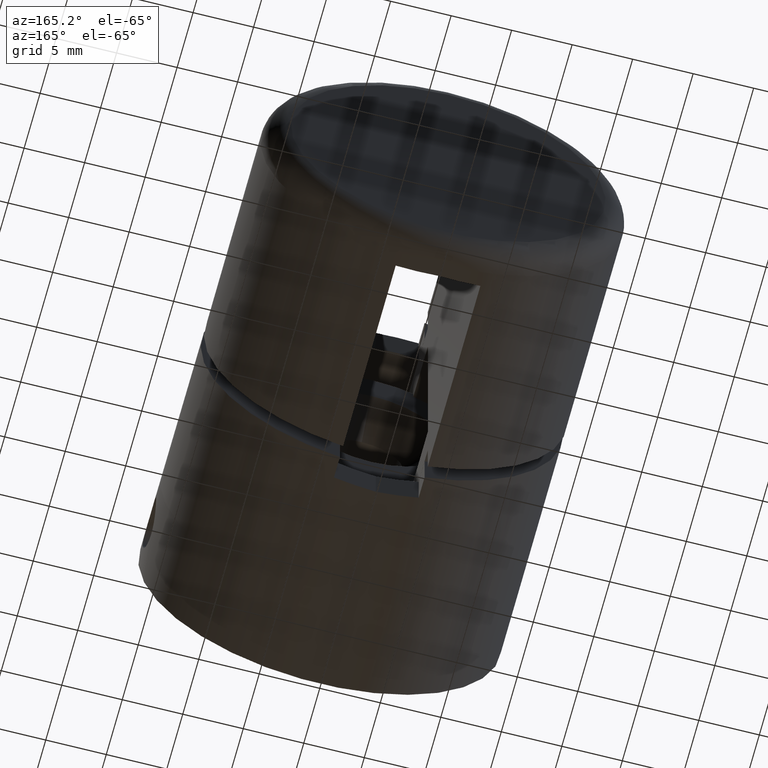
[diagram: clean part render]
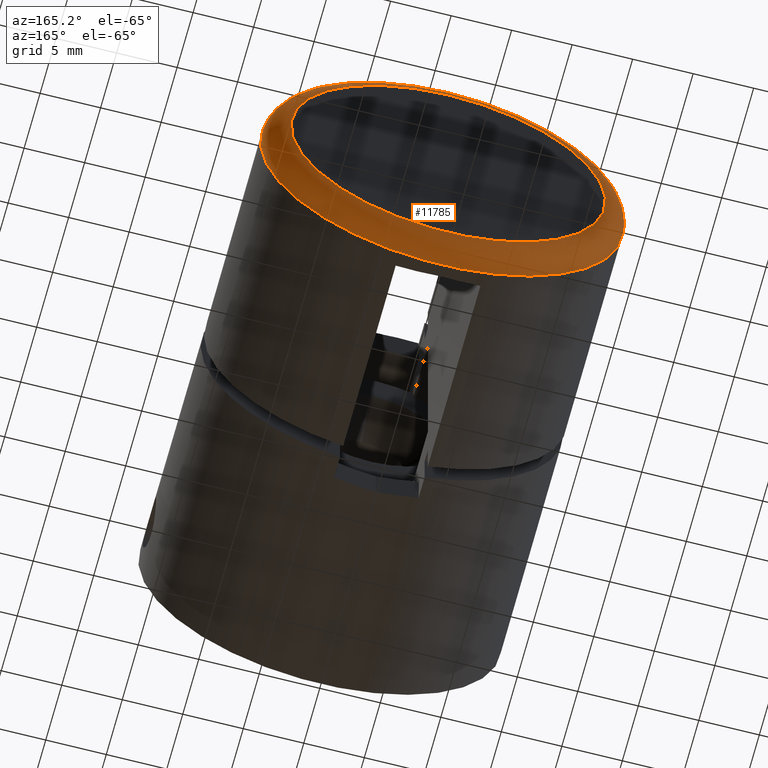
[diagram: same view with one face highlighted and labeled with its STEP entity id]
A machine part, auxiliary view. The second image highlights one B-rep face of the part: STEP entity #11785.
In plain terms, the highlighted toroidal blend (fillet) surface has major radius 13 mm and minor (blend) radius 2 mm.
Its self-contained STEP definition (entity closure, byte-faithful):
#1523 = DIRECTION ( 'NONE',  ( 0.0000000000000000000, 0.0000000000000000000, -1.000000000000000000 ) ) ;
#1818 = AXIS2_PLACEMENT_3D ( 'NONE', #8651, #3491, #4745 ) ;
#3225 = CIRCLE ( 'NONE', #10066, 15.00000000000000000 ) ;
#3491 = DIRECTION ( 'NONE',  ( 0.0000000000000000000, -1.000000000000000000, 0.0000000000000000000 ) ) ;
#3755 = FACE_OUTER_BOUND ( 'NONE', #8431, .T. ) ;
#4147 = DIRECTION ( 'NONE',  ( 0.0000000000000000000, 0.0000000000000000000, -1.000000000000000000 ) ) ;
#4745 = DIRECTION ( 'NONE',  ( 0.0000000000000000000, 0.0000000000000000000, -1.000000000000000000 ) ) ;
#4756 = AXIS2_PLACEMENT_3D ( 'NONE', #5287, #7888, #1523 ) ;
#5287 = CARTESIAN_POINT ( 'NONE',  ( 0.0000000000000000000, 1.500000000000000000, 0.0000000000000000000 ) ) ;
#5296 = VERTEX_POINT ( 'NONE', #6538 ) ;
#6040 = ORIENTED_EDGE ( 'NONE', *, *, #9350, .F. ) ;
#6368 = EDGE_CURVE ( 'NONE', #13329, #13329, #13049, .T. ) ;
#6538 = CARTESIAN_POINT ( 'NONE',  ( 0.0000000000000000000, 3.499999999999999600, -15.00000000000000000 ) ) ;
#7888 = DIRECTION ( 'NONE',  ( 0.0000000000000000000, -1.000000000000000000, 0.0000000000000000000 ) ) ;
#8134 = CARTESIAN_POINT ( 'NONE',  ( 0.0000000000000000000, 3.499999999999999600, 0.0000000000000000000 ) ) ;
#8431 = EDGE_LOOP ( 'NONE', ( #13105 ) ) ;
#8651 = CARTESIAN_POINT ( 'NONE',  ( 0.0000000000000000000, 3.499999999999999600, 0.0000000000000000000 ) ) ;
#9350 = EDGE_CURVE ( 'NONE', #5296, #5296, #3225, .T. ) ;
#10066 = AXIS2_PLACEMENT_3D ( 'NONE', #8134, #10526, #4147 ) ;
#10526 = DIRECTION ( 'NONE',  ( -0.0000000000000000000, 1.000000000000000000, -0.0000000000000000000 ) ) ;
#11785 = ADVANCED_FACE ( 'NONE', ( #15686, #3755 ), #15482, .T. ) ;
#13049 = CIRCLE ( 'NONE', #4756, 13.00000000000000000 ) ;
#13084 = CARTESIAN_POINT ( 'NONE',  ( 0.0000000000000000000, 1.500000000000000000, -13.00000000000000000 ) ) ;
#13105 = ORIENTED_EDGE ( 'NONE', *, *, #6368, .F. ) ;
#13329 = VERTEX_POINT ( 'NONE', #13084 ) ;
#13883 = EDGE_LOOP ( 'NONE', ( #6040 ) ) ;
#15482 = TOROIDAL_SURFACE ( 'NONE', #1818, 13.00000000000000000, 2.000000000000000000 ) ;
#15686 = FACE_OUTER_BOUND ( 'NONE', #13883, .T. ) ;